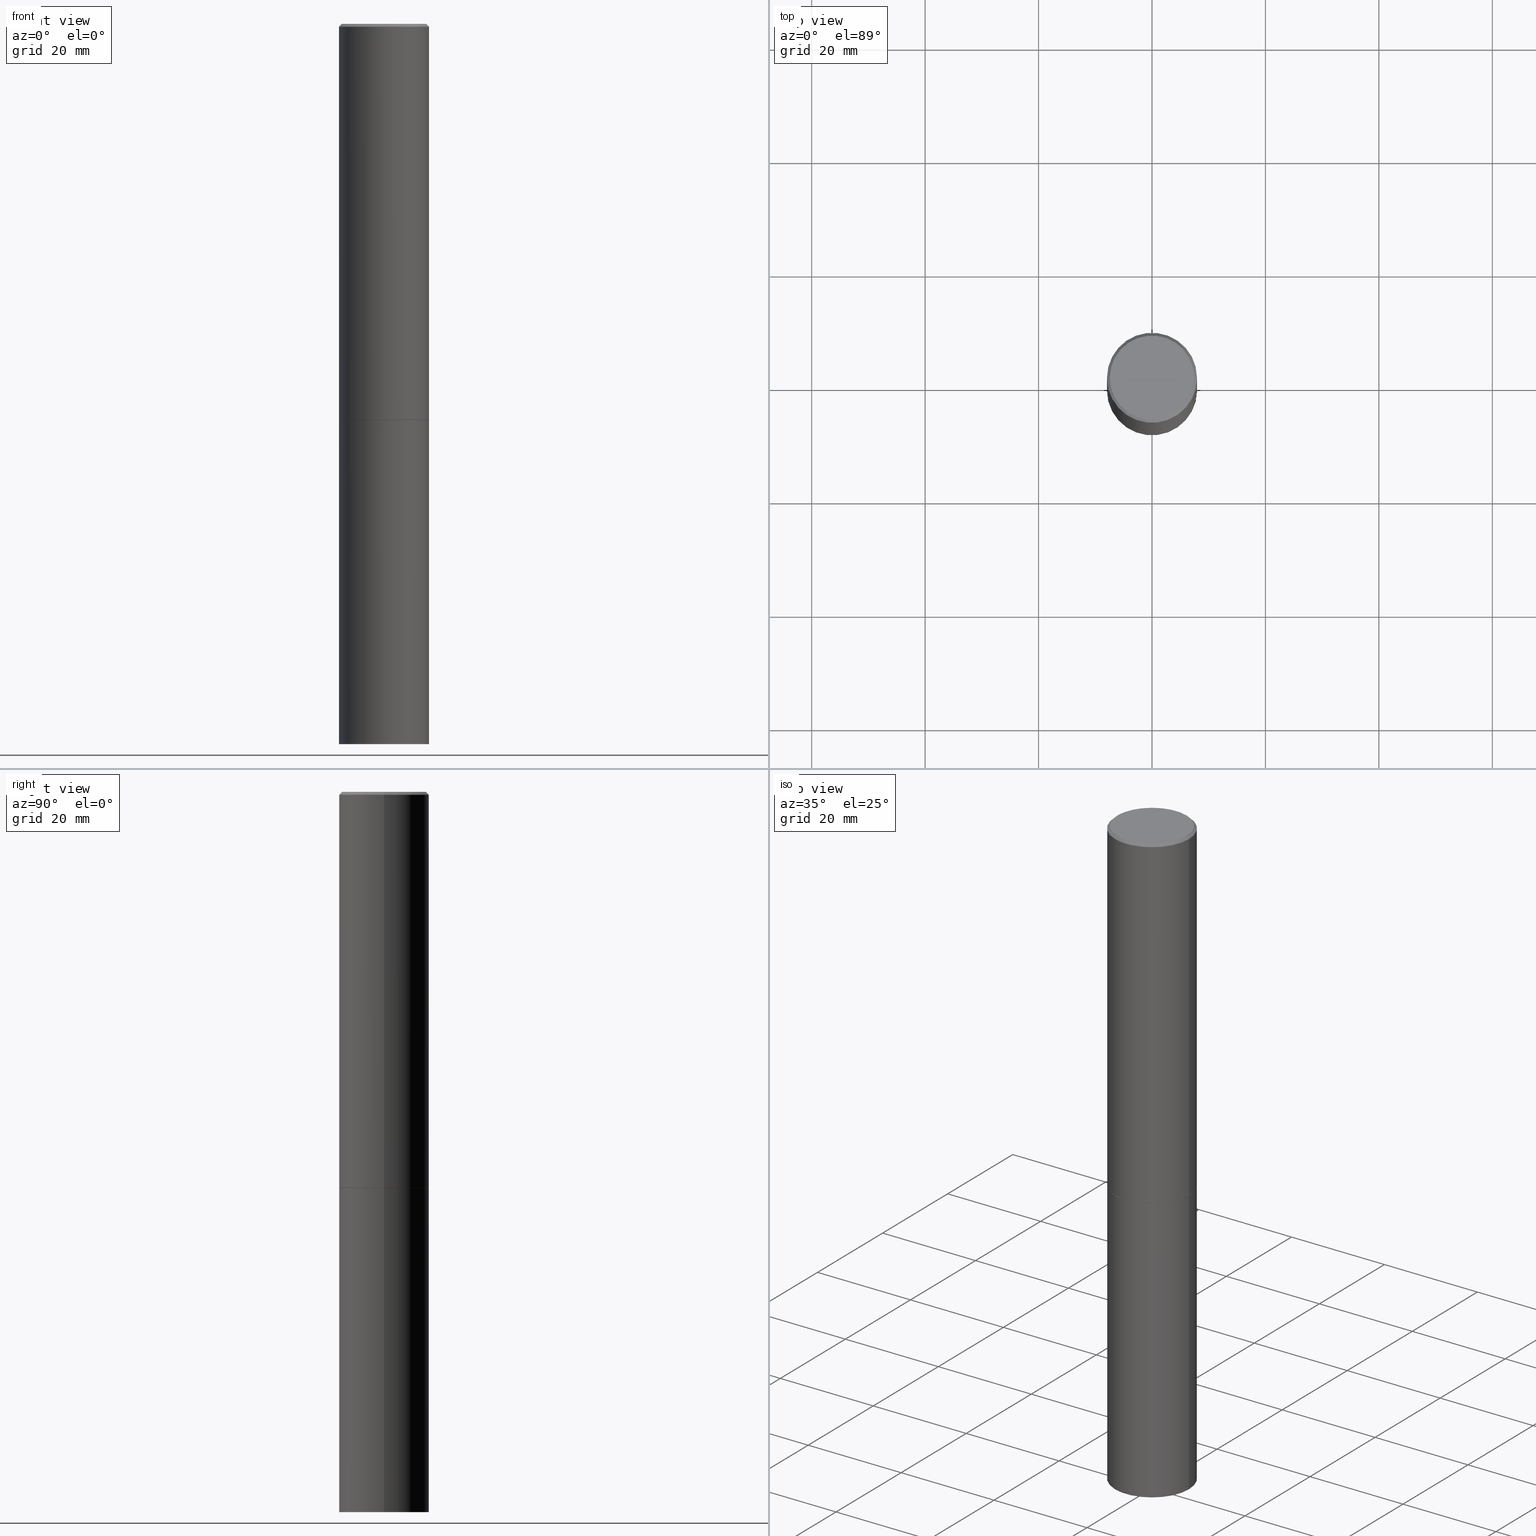
[diagram: canonical four-view strip — front | top / right | iso, engineering-drawing reading convention]
A machine part, canonical four-view strip (front | top / right | iso — engineering-drawing reading convention). The complete STEP part file that produces these views, byte-faithful:
ISO-10303-21;
HEADER;
FILE_DESCRIPTION (( 'STEP AP203' ),
    '1' );
FILE_NAME ('70484.STEP',
    '2024-02-29T03:09:03',
    ( '' ),
    ( '' ),
    'SwSTEP 2.0',
    'SolidWorks 2023',
    '' );
FILE_SCHEMA (( 'CONFIG_CONTROL_DESIGN' ));
ENDSEC;

DATA;
#1 = VERTEX_POINT ( 'NONE', #300 ) ;
#2 = VERTEX_POINT ( 'NONE', #189 ) ;
#3 = APPROVAL_DATE_TIME ( #259, #114 ) ;
#4 = ORIENTED_EDGE ( 'NONE', *, *, #316, .F. ) ;
#5 = VECTOR ( 'NONE', #177, 39.37007874015748143 ) ;
#6 = CARTESIAN_POINT ( 'NONE',  ( -0.3125000000000000000, -1.130904413876687600E-14, -2.750000000000000000 ) ) ;
#7 = AXIS2_PLACEMENT_3D ( 'NONE', #14, #66, #185 ) ;
#8 = ORIENTED_EDGE ( 'NONE', *, *, #110, .T. ) ;
#9 =( LENGTH_UNIT ( ) NAMED_UNIT ( * ) SI_UNIT ( $, .METRE. ) );
#10 = EDGE_CURVE ( 'NONE', #297, #33, #130, .T. ) ;
#11 = CARTESIAN_POINT ( 'NONE',  ( 0.000000000000000000, 0.000000000000000000, 0.000000000000000000 ) ) ;
#12 = VECTOR ( 'NONE', #45, 39.37007874015748143 ) ;
#13 = CC_DESIGN_APPROVAL ( #211, ( #181 ) ) ;
#14 = CARTESIAN_POINT ( 'NONE',  ( -1.043851414335219820E-46, 1.490343170380447200E-32, 4.268512490100411279E-18 ) ) ;
#15 = DIRECTION ( 'NONE',  ( -2.445468806185136597E-29, 3.491481338843145583E-15, 1.000000000000000000 ) ) ;
#16 = PERSON_AND_ORGANIZATION_ROLE ( 'classification_officer' ) ;
#17 = DIRECTION ( 'NONE',  ( 1.000000000000000000, -6.982962677686269077E-15, 0.000000000000000000 ) ) ;
#18 = PERSON_AND_ORGANIZATION_ROLE ( 'design_supplier' ) ;
#19 = DIRECTION ( 'NONE',  ( -2.445468806185136597E-29, 3.491481338843145583E-15, 1.000000000000000000 ) ) ;
#20 = AXIS2_PLACEMENT_3D ( 'NONE', #336, #191, #157 ) ;
#21 = AXIS2_PLACEMENT_3D ( 'NONE', #269, #180, #266 ) ;
#22 = CARTESIAN_POINT ( 'NONE',  ( 6.722593748202941159E-29, -9.598082200479808430E-15, -2.749000000000000110 ) ) ;
#23 = DIRECTION ( 'NONE',  ( 1.000000000000000000, -6.982962677686265922E-15, 0.000000000000000000 ) ) ;
#24 = VECTOR ( 'NONE', #278, 39.37007874015748143 ) ;
#25 = LINE ( 'NONE', #100, #227 ) ;
#26 = EDGE_CURVE ( 'NONE', #287, #174, #366, .T. ) ;
#27 = ORIENTED_EDGE ( 'NONE', *, *, #26, .F. ) ;
#28 = AXIS2_PLACEMENT_3D ( 'NONE', #22, #361, #105 ) ;
#29 = ORIENTED_EDGE ( 'NONE', *, *, #52, .F. ) ;
#30 = PERSON_AND_ORGANIZATION ( #161, #344 ) ;
#31 = EDGE_CURVE ( 'NONE', #297, #201, #311, .T. ) ;
#32 = ORIENTED_EDGE ( 'NONE', *, *, #345, .F. ) ;
#33 = VERTEX_POINT ( 'NONE', #216 ) ;
#34 = DIRECTION ( 'NONE',  ( -2.445468806185136597E-29, 3.491481338843145583E-15, 1.000000000000000000 ) ) ;
#35 = DIRECTION ( 'NONE',  ( 1.000000000000000000, -6.982962677686265133E-15, 4.876176775795935232E-29 ) ) ;
#36 = SECURITY_CLASSIFICATION ( '', '', #302 ) ;
#37 = CARTESIAN_POINT ( 'NONE',  ( 2.042516583223229779E-15, 0.2924999999999995937, -1.019124035366568423E-15 ) ) ;
#38 = DESIGN_CONTEXT ( 'detailed design', #230, 'design' ) ;
#39 = DIRECTION ( 'NONE',  ( -2.445468806185136597E-29, 3.491481338843145583E-15, 1.000000000000000000 ) ) ;
#40 = DIRECTION ( 'NONE',  ( -2.445468806185136597E-29, 3.491481338843145583E-15, 1.000000000000000000 ) ) ;
#41 = EDGE_CURVE ( 'NONE', #33, #174, #206, .T. ) ;
#42 = DIRECTION ( 'NONE',  ( -1.000000000000000000, 6.982962677686266711E-15, 0.000000000000000000 ) ) ;
#43 = PLANE ( 'NONE',  #285 ) ;
#44 = CARTESIAN_POINT ( 'NONE',  ( -0.3125000000000000000, -2.613509864378019233E-15, -2.749000000000000110 ) ) ;
#45 = DIRECTION ( 'NONE',  ( -0.7071067811865466846, 2.468850131082247989E-15, -0.7071067811865483499 ) ) ;
#46 = AXIS2_PLACEMENT_3D ( 'NONE', #84, #320, #265 ) ;
#47 = EDGE_CURVE ( 'NONE', #1, #257, #362, .T. ) ;
#48 = EDGE_LOOP ( 'NONE', ( #224, #307, #49, #27 ) ) ;
#49 = ORIENTED_EDGE ( 'NONE', *, *, #41, .T. ) ;
#50 = AXIS2_PLACEMENT_3D ( 'NONE', #57, #232, #35 ) ;
#51 = ORIENTED_EDGE ( 'NONE', *, *, #31, .T. ) ;
#52 = EDGE_CURVE ( 'NONE', #112, #201, #25, .T. ) ;
#53 = CALENDAR_DATE ( 2024, 28, 2 ) ;
#54 = ORIENTED_EDGE ( 'NONE', *, *, #365, .F. ) ;
#55 = ADVANCED_FACE ( 'NONE', ( #133 ), #254, .T. ) ;
#56 = APPROVAL_PERSON_ORGANIZATION ( #357, #142, #65 ) ;
#57 = CARTESIAN_POINT ( 'NONE',  ( 0.000000000000000000, 0.000000000000000000, 0.000000000000000000 ) ) ;
#58 = APPROVAL_STATUS ( 'not_yet_approved' ) ;
#59 =( CONVERSION_BASED_UNIT ( 'INCH', #235 ) LENGTH_UNIT ( ) NAMED_UNIT ( #74 ) );
#60 = CARTESIAN_POINT ( 'NONE',  ( -0.2924999999999995937, 2.077431396611661033E-15, 4.268512490086005323E-18 ) ) ;
#61 = AXIS2_PLACEMENT_3D ( 'NONE', #283, #166, #69 ) ;
#62 = MANIFOLD_SOLID_BREP ( 'Body-Move/Copy2[2]', #354 ) ;
#63 = ADVANCED_FACE ( 'NONE', ( #221 ), #43, .F. ) ;
#64 = CYLINDRICAL_SURFACE ( 'NONE', #294, 0.3125000000000000000 ) ;
#65 = APPROVAL_ROLE ( '' ) ;
#66 = DIRECTION ( 'NONE',  ( -2.445468806185136597E-29, 3.491481338843145583E-15, 1.000000000000000000 ) ) ;
#67 = CALENDAR_DATE ( 2024, 28, 2 ) ;
#68 = DIRECTION ( 'NONE',  ( 1.000000000000000000, -6.982962677686269077E-15, 0.000000000000000000 ) ) ;
#69 = DIRECTION ( 'NONE',  ( 1.000000000000000000, -6.982962677686266711E-15, 0.000000000000000000 ) ) ;
#70 = DIRECTION ( 'NONE',  ( 1.000000000000000000, -6.982962677686269077E-15, 0.000000000000000000 ) ) ;
#71 = ADVANCED_FACE ( 'NONE', ( #333 ), #255, .T. ) ;
#72 = CARTESIAN_POINT ( 'NONE',  ( 6.725039217009123399E-29, -9.601573681818648281E-15, -2.749999999999999556 ) ) ;
#73 = CARTESIAN_POINT ( 'NONE',  ( -0.3114999999999999991, -7.382934605577716173E-15, -2.749999999999999556 ) ) ;
#74 = DIMENSIONAL_EXPONENTS ( 1.000000000000000000, 0.000000000000000000, 0.000000000000000000, 0.000000000000000000, 0.000000000000000000, 0.000000000000000000, 0.000000000000000000 ) ;
#75 = CIRCLE ( 'NONE', #198, 0.3125000000000000000 ) ;
#76 = LOCAL_TIME ( 22, 9, 3.000000000000000000, #125 ) ;
#77 = ORIENTED_EDGE ( 'NONE', *, *, #110, .F. ) ;
#78 = APPLICATION_PROTOCOL_DEFINITION ( 'international standard', 'config_control_design', 1994, #148 ) ;
#79 = ORIENTED_EDGE ( 'NONE', *, *, #183, .F. ) ;
#80 = AXIS2_PLACEMENT_3D ( 'NONE', #246, #104, #303 ) ;
#81 = PERSON_AND_ORGANIZATION ( #161, #344 ) ;
#82 = VERTEX_POINT ( 'NONE', #6 ) ;
#83 = ORIENTED_EDGE ( 'NONE', *, *, #91, .F. ) ;
#84 = CARTESIAN_POINT ( 'NONE',  ( 0.000000000000000000, 0.000000000000000000, 0.000000000000000000 ) ) ;
#85 = ADVANCED_FACE ( 'NONE', ( #256 ), #234, .T. ) ;
#86 = CARTESIAN_POINT ( 'NONE',  ( 6.725039217009123399E-29, -9.601573681818648281E-15, -2.749999999999999556 ) ) ;
#87 = CONICAL_SURFACE ( 'NONE', #301, 0.3114999999999999991, 0.7853981633978239785 ) ;
#88 = ORIENTED_EDGE ( 'NONE', *, *, #308, .F. ) ;
#89 = PLANE ( 'NONE',  #335 ) ;
#90 = PERSON_AND_ORGANIZATION ( #161, #344 ) ;
#91 = EDGE_CURVE ( 'NONE', #201, #297, #324, .T. ) ;
#92 = CARTESIAN_POINT ( 'NONE',  ( 6.725039217009123399E-29, -9.601573681818648281E-15, -2.749999999999999556 ) ) ;
#93 = AXIS2_PLACEMENT_3D ( 'NONE', #260, #197, #108 ) ;
#94 = DIRECTION ( 'NONE',  ( 1.000000000000000000, -6.982962677686265922E-15, 0.000000000000000000 ) ) ;
#95 = DATE_AND_TIME ( #67, #340 ) ;
#96 = ORIENTED_EDGE ( 'NONE', *, *, #308, .T. ) ;
#97 = PRODUCT_RELATED_PRODUCT_CATEGORY ( 'detail', '', ( #239 ) ) ;
#98 = CALENDAR_DATE ( 2024, 28, 2 ) ;
#99 = CARTESIAN_POINT ( 'NONE',  ( 4.890937612370289799E-31, -6.982962677686315028E-17, -0.02000000000000006981 ) ) ;
#100 = CARTESIAN_POINT ( 'NONE',  ( -0.3114999999999999991, -7.388233059925936998E-15, -2.749999999999999556 ) ) ;
#101 = DIRECTION ( 'NONE',  ( 2.438088387897960049E-29, -3.491481338843145188E-15, -1.000000000000000000 ) ) ;
#102 = CONICAL_SURFACE ( 'NONE', #127, 0.3124999999999996114, 0.7853981633974471688 ) ;
#103 = AXIS2_PLACEMENT_3D ( 'NONE', #92, #39, #94 ) ;
#104 = DIRECTION ( 'NONE',  ( -2.445468806185136597E-29, 3.491481338843145583E-15, 1.000000000000000000 ) ) ;
#105 = DIRECTION ( 'NONE',  ( 1.000000000000000000, -6.982962677686269077E-15, 0.000000000000000000 ) ) ;
#106 = CARTESIAN_POINT ( 'NONE',  ( 2.182175836777080620E-15, 0.3124999999999825140, -5.000000000000000888 ) ) ;
#107 = CIRCLE ( 'NONE', #137, 0.3125000000000000000 ) ;
#108 = DIRECTION ( 'NONE',  ( -1.000000000000000000, 6.982962677686266711E-15, 0.000000000000000000 ) ) ;
#109 = ORIENTED_EDGE ( 'NONE', *, *, #31, .F. ) ;
#110 = EDGE_CURVE ( 'NONE', #82, #317, #120, .T. ) ;
#111 = VERTEX_POINT ( 'NONE', #158 ) ;
#112 = VERTEX_POINT ( 'NONE', #73 ) ;
#113 = AXIS2_PLACEMENT_3D ( 'NONE', #72, #159, #23 ) ;
#114 = APPROVAL ( #58, 'UNSPECIFIED' ) ;
#115 = APPROVAL_ROLE ( '' ) ;
#116 = ORIENTED_EDGE ( 'NONE', *, *, #241, .T. ) ;
#117 = CARTESIAN_POINT ( 'NONE',  ( 1.222734403092568523E-28, -1.745740669421572989E-14, -5.000000000000000000 ) ) ;
#118 = ORIENTED_EDGE ( 'NONE', *, *, #52, .T. ) ;
#119 = DIRECTION ( 'NONE',  ( -2.445468806185136877E-29, 3.491481338843145188E-15, 1.000000000000000000 ) ) ;
#120 = CIRCLE ( 'NONE', #80, 0.3125000000000000000 ) ;
#121 = APPROVAL_STATUS ( 'not_yet_approved' ) ;
#122 = CARTESIAN_POINT ( 'NONE',  ( 0.3125000000000000000, -2.182175836776958347E-15, 1.523805242436230075E-29 ) ) ;
#123 = CC_DESIGN_PERSON_AND_ORGANIZATION_ASSIGNMENT ( #273, #279, ( #181 ) ) ;
#124 = FACE_OUTER_BOUND ( 'NONE', #205, .T. ) ;
#125 = COORDINATED_UNIVERSAL_TIME_OFFSET ( 5, 0, .BEHIND. ) ;
#126 = DIRECTION ( 'NONE',  ( -1.000000000000000000, 6.982962677686265922E-15, -4.876176775795935793E-29 ) ) ;
#127 = AXIS2_PLACEMENT_3D ( 'NONE', #99, #128, #42 ) ;
#128 = DIRECTION ( 'NONE',  ( 2.445468806185136597E-29, -3.491481338843145583E-15, -1.000000000000000000 ) ) ;
#129 = PRODUCT_DEFINITION ( 'UNKNOWN', '', #181, #38 ) ;
#130 = LINE ( 'NONE', #337, #24 ) ;
#131 = ORIENTED_EDGE ( 'NONE', *, *, #10, .T. ) ;
#132 = CARTESIAN_POINT ( 'NONE',  ( 0.000000000000000000, 0.000000000000000000, 0.000000000000000000 ) ) ;
#133 = FACE_OUTER_BOUND ( 'NONE', #186, .T. ) ;
#134 = VECTOR ( 'NONE', #119, 39.37007874015748143 ) ;
#135 = LOCAL_TIME ( 22, 9, 3.000000000000000000, #143 ) ;
#136 = DIRECTION ( 'NONE',  ( -0.7071067811868130271, 7.493145998871311837E-15, 0.7071067811862817853 ) ) ;
#137 = AXIS2_PLACEMENT_3D ( 'NONE', #117, #34, #17 ) ;
#138 = ORIENTED_EDGE ( 'NONE', *, *, #316, .T. ) ;
#139 = EDGE_LOOP ( 'NONE', ( #51, #228, #231, #168 ) ) ;
#140 = CALENDAR_DATE ( 2024, 28, 2 ) ;
#141 = ORIENTED_EDGE ( 'NONE', *, *, #248, .F. ) ;
#142 = APPROVAL ( #121, 'UNSPECIFIED' ) ;
#143 = COORDINATED_UNIVERSAL_TIME_OFFSET ( 5, 0, .BEHIND. ) ;
#144 = ORIENTED_EDGE ( 'NONE', *, *, #183, .T. ) ;
#145 = DATE_TIME_ROLE ( 'creation_date' ) ;
#146 = ORIENTED_EDGE ( 'NONE', *, *, #341, .T. ) ;
#147 = LINE ( 'NONE', #212, #282 ) ;
#148 = APPLICATION_CONTEXT ( 'configuration controlled 3d designs of mechanical parts and assemblies' ) ;
#149 = EDGE_CURVE ( 'NONE', #111, #33, #332, .T. ) ;
#150 = FACE_OUTER_BOUND ( 'NONE', #171, .T. ) ;
#151 = CC_DESIGN_APPROVAL ( #114, ( #129 ) ) ;
#152 = COORDINATED_UNIVERSAL_TIME_OFFSET ( 5, 0, .BEHIND. ) ;
#153 = PLANE ( 'NONE',  #275 ) ;
#154 = DATE_AND_TIME ( #184, #76 ) ;
#155 = CARTESIAN_POINT ( 'NONE',  ( 2.182175836777025400E-15, 0.3124999999999903966, -2.750000000000000888 ) ) ;
#156 = CLOSED_SHELL ( 'NONE', ( #322, #55, #305, #202 ) ) ;
#157 = DIRECTION ( 'NONE',  ( 1.000000000000000000, -6.982962677686266711E-15, 4.876067333457696203E-29 ) ) ;
#158 = CARTESIAN_POINT ( 'NONE',  ( 0.2924999999999995937, -2.110215457714316776E-15, 4.268512490114932791E-18 ) ) ;
#159 = DIRECTION ( 'NONE',  ( -2.445468806185136597E-29, 3.491481338843145583E-15, 1.000000000000000000 ) ) ;
#160 = ADVANCED_FACE ( 'NONE', ( #188 ), #249, .T. ) ;
#161 = PERSON ( 'UNSPECIFIED', 'UNSPECIFIED', 'UNSPECIFIED', ('UNSPECIFIED'), ('UNSPECIFIED'), ('UNSPECIFIED') ) ;
#162 = FACE_OUTER_BOUND ( 'NONE', #163, .T. ) ;
#163 = EDGE_LOOP ( 'NONE', ( #194, #343, #116, #77 ) ) ;
#164 = AXIS2_PLACEMENT_3D ( 'NONE', #309, #222, #70 ) ;
#165 = AXIS2_PLACEMENT_3D ( 'NONE', #353, #242, #270 ) ;
#166 = DIRECTION ( 'NONE',  ( -2.445468806185136597E-29, 3.491481338843145583E-15, 1.000000000000000000 ) ) ;
#167 = CC_DESIGN_PERSON_AND_ORGANIZATION_ASSIGNMENT ( #245, #18, ( #181 ) ) ;
#168 = ORIENTED_EDGE ( 'NONE', *, *, #10, .F. ) ;
#169 = EDGE_LOOP ( 'NONE', ( #199, #88 ) ) ;
#170 = VECTOR ( 'NONE', #214, 39.37007874015748854 ) ;
#171 = EDGE_LOOP ( 'NONE', ( #226, #315, #79, #258 ) ) ;
#172 = ORIENTED_EDGE ( 'NONE', *, *, #47, .F. ) ;
#173 = DATE_AND_TIME ( #53, #135 ) ;
#174 = VERTEX_POINT ( 'NONE', #252 ) ;
#175 = CIRCLE ( 'NONE', #20, 0.2924999999999995937 ) ;
#176 = CIRCLE ( 'NONE', #165, 0.3114999999999999991 ) ;
#177 = DIRECTION ( 'NONE',  ( -2.445468806185136877E-29, 3.491481338843145188E-15, 1.000000000000000000 ) ) ;
#178 = CC_DESIGN_PERSON_AND_ORGANIZATION_ASSIGNMENT ( #243, #16, ( #36 ) ) ;
#179 =( NAMED_UNIT ( * ) PLANE_ANGLE_UNIT ( ) SI_UNIT ( $, .RADIAN. ) );
#180 = DIRECTION ( 'NONE',  ( -2.445468806185136597E-29, 3.491481338843145583E-15, 1.000000000000000000 ) ) ;
#181 = PRODUCT_DEFINITION_FORMATION_WITH_SPECIFIED_SOURCE ( 'ANY', '', #239, .NOT_KNOWN. ) ;
#182 = DIRECTION ( 'NONE',  ( 1.000000000000000000, -6.982962677686266711E-15, 4.876176775795936353E-29 ) ) ;
#183 = EDGE_CURVE ( 'NONE', #317, #82, #75, .T. ) ;
#184 = CALENDAR_DATE ( 2024, 28, 2 ) ;
#185 = DIRECTION ( 'NONE',  ( 1.000000000000000000, -6.982962677686266711E-15, 4.876067333457696203E-29 ) ) ;
#186 = EDGE_LOOP ( 'NONE', ( #172, #261 ) ) ;
#187 = APPROVAL_ROLE ( '' ) ;
#188 = FACE_OUTER_BOUND ( 'NONE', #313, .T. ) ;
#189 = CARTESIAN_POINT ( 'NONE',  ( 0.3114999999999999991, -1.177676655591792061E-14, -2.749999999999999556 ) ) ;
#190 = ADVANCED_FACE ( 'NONE', ( #364 ), #102, .T. ) ;
#191 = DIRECTION ( 'NONE',  ( -2.445468806185136597E-29, 3.491481338843145583E-15, 1.000000000000000000 ) ) ;
#192 = AXIS2_PLACEMENT_3D ( 'NONE', #106, #101, #223 ) ;
#193 = EDGE_CURVE ( 'NONE', #111, #287, #175, .T. ) ;
#194 = ORIENTED_EDGE ( 'NONE', *, *, #288, .F. ) ;
#195 = MANIFOLD_SOLID_BREP ( 'Body-Move/Copy2[1]', #156 ) ;
#196 = ORIENTED_EDGE ( 'NONE', *, *, #26, .T. ) ;
#197 = DIRECTION ( 'NONE',  ( 2.445468806185136597E-29, -3.491481338843145583E-15, -1.000000000000000000 ) ) ;
#198 = AXIS2_PLACEMENT_3D ( 'NONE', #358, #19, #68 ) ;
#199 = ORIENTED_EDGE ( 'NONE', *, *, #341, .F. ) ;
#200 = CC_DESIGN_APPROVAL ( #142, ( #36 ) ) ;
#201 = VERTEX_POINT ( 'NONE', #44 ) ;
#202 = ADVANCED_FACE ( 'NONE', ( #162 ), #244, .T. ) ;
#203 = MECHANICAL_CONTEXT ( 'NONE', #148, 'mechanical' ) ;
#204 = EDGE_LOOP ( 'NONE', ( #29, #96, #346, #83 ) ) ;
#205 = EDGE_LOOP ( 'NONE', ( #348, #264 ) ) ;
#206 = CIRCLE ( 'NONE', #61, 0.3124999999999996114 ) ;
#207 = CC_DESIGN_SECURITY_CLASSIFICATION ( #36, ( #181 ) ) ;
#208 = CARTESIAN_POINT ( 'NONE',  ( 0.3114999999999999991, -1.177676655591792061E-14, -2.749999999999999556 ) ) ;
#209 = FACE_OUTER_BOUND ( 'NONE', #262, .T. ) ;
#210 = LINE ( 'NONE', #272, #134 ) ;
#211 = APPROVAL ( #296, 'UNSPECIFIED' ) ;
#212 = CARTESIAN_POINT ( 'NONE',  ( -0.3125000000000000000, 2.220446049250313081E-15, -1.537167215704658232E-29 ) ) ;
#213 = APPROVAL_PERSON_ORGANIZATION ( #30, #114, #115 ) ;
#214 = DIRECTION ( 'NONE',  ( 0.7071067811868130271, -2.468850131085038979E-15, 0.7071067811862817853 ) ) ;
#215 = DIRECTION ( 'NONE',  ( 0.7071067811865466846, -7.319954787623252890E-15, -0.7071067811865483499 ) ) ;
#216 = CARTESIAN_POINT ( 'NONE',  ( 0.3124999999999996114, -2.213735251080464150E-15, -0.02000000000000006981 ) ) ;
#217 = SHAPE_DEFINITION_REPRESENTATION ( #347, #229 ) ;
#218 = DIRECTION ( 'NONE',  ( 1.000000000000000000, -6.982962677686266711E-15, 4.876176775795936353E-29 ) ) ;
#219 = DIRECTION ( 'NONE',  ( 1.000000000000000000, -6.982962677686265922E-15, 4.876176775795935793E-29 ) ) ;
#220 = CC_DESIGN_DATE_AND_TIME_ASSIGNMENT ( #276, #236, ( #36 ) ) ;
#221 = FACE_OUTER_BOUND ( 'NONE', #169, .T. ) ;
#222 = DIRECTION ( 'NONE',  ( -2.445468806185136597E-29, 3.491481338843145583E-15, 1.000000000000000000 ) ) ;
#223 = DIRECTION ( 'NONE',  ( -1.000000000000000000, 6.982962677686265922E-15, -4.876176775795935793E-29 ) ) ;
#224 = ORIENTED_EDGE ( 'NONE', *, *, #193, .F. ) ;
#225 = APPLICATION_PROTOCOL_DEFINITION ( 'international standard', 'config_control_design', 1994, #230 ) ;
#226 = ORIENTED_EDGE ( 'NONE', *, *, #47, .T. ) ;
#227 = VECTOR ( 'NONE', #136, 39.37007874015748854 ) ;
#228 = ORIENTED_EDGE ( 'NONE', *, *, #248, .T. ) ;
#229 = ADVANCED_BREP_SHAPE_REPRESENTATION ( '70484', ( #195, #62, #46 ), #312 ) ;
#230 = APPLICATION_CONTEXT ( 'configuration controlled 3d designs of mechanical parts and assemblies' ) ;
#231 = ORIENTED_EDGE ( 'NONE', *, *, #41, .F. ) ;
#232 = DIRECTION ( 'NONE',  ( -2.445468806185136597E-29, 3.491481338843145583E-15, 1.000000000000000000 ) ) ;
#233 = UNCERTAINTY_MEASURE_WITH_UNIT (LENGTH_MEASURE( 1.000000000000000082E-05 ), #59, 'distance_accuracy_value', 'NONE');
#234 = CONICAL_SURFACE ( 'NONE', #93, 0.3124999999999996114, 0.7853981633974471688 ) ;
#235 = LENGTH_MEASURE_WITH_UNIT ( LENGTH_MEASURE( 0.02539999999999999897 ), #9 );
#236 = DATE_TIME_ROLE ( 'classification_date' ) ;
#237 = DIRECTION ( 'NONE',  ( -2.445468806185136877E-29, 3.491481338843145188E-15, 1.000000000000000000 ) ) ;
#238 = ORIENTED_EDGE ( 'NONE', *, *, #149, .F. ) ;
#239 = PRODUCT ( '70484', '70484', '', ( #203 ) ) ;
#240 = DIRECTION ( 'NONE',  ( -1.000000000000000000, 6.982962677686265922E-15, -4.876176775795935793E-29 ) ) ;
#241 = EDGE_CURVE ( 'NONE', #1, #317, #299, .T. ) ;
#242 = DIRECTION ( 'NONE',  ( -2.445468806185136597E-29, 3.491481338843145583E-15, 1.000000000000000000 ) ) ;
#243 = PERSON_AND_ORGANIZATION ( #161, #344 ) ;
#244 = CYLINDRICAL_SURFACE ( 'NONE', #274, 0.3125000000000000000 ) ;
#245 = PERSON_AND_ORGANIZATION ( #161, #344 ) ;
#246 = CARTESIAN_POINT ( 'NONE',  ( 6.725039217009124520E-29, -9.601573681818649859E-15, -2.750000000000000000 ) ) ;
#247 = CARTESIAN_POINT ( 'NONE',  ( 1.222734403092568523E-28, -1.745740669421572989E-14, -5.000000000000000000 ) ) ;
#248 = EDGE_CURVE ( 'NONE', #201, #174, #210, .T. ) ;
#249 = CYLINDRICAL_SURFACE ( 'NONE', #306, 0.3124999999999998335 ) ;
#250 = DIRECTION ( 'NONE',  ( 1.000000000000000000, -6.982962677686269077E-15, 0.000000000000000000 ) ) ;
#251 =( NAMED_UNIT ( * ) SI_UNIT ( $, .STERADIAN. ) SOLID_ANGLE_UNIT ( ) );
#252 = CARTESIAN_POINT ( 'NONE',  ( -0.3124999999999996114, 2.112346210000092288E-15, -0.02000000000000006981 ) ) ;
#253 = ADVANCED_FACE ( 'NONE', ( #321 ), #87, .T. ) ;
#254 = PLANE ( 'NONE',  #192 ) ;
#255 = CONICAL_SURFACE ( 'NONE', #113, 0.3114999999999999991, 0.7853981633978239785 ) ;
#256 = FACE_OUTER_BOUND ( 'NONE', #310, .T. ) ;
#257 = VERTEX_POINT ( 'NONE', #290 ) ;
#258 = ORIENTED_EDGE ( 'NONE', *, *, #241, .F. ) ;
#259 = DATE_AND_TIME ( #140, #263 ) ;
#260 = CARTESIAN_POINT ( 'NONE',  ( 4.890937612370289799E-31, -6.982962677686315028E-17, -0.02000000000000006981 ) ) ;
#261 = ORIENTED_EDGE ( 'NONE', *, *, #271, .F. ) ;
#262 = EDGE_LOOP ( 'NONE', ( #144, #8 ) ) ;
#263 = LOCAL_TIME ( 22, 9, 3.000000000000000000, #342 ) ;
#264 = ORIENTED_EDGE ( 'NONE', *, *, #193, .T. ) ;
#265 = DIRECTION ( 'NONE',  ( 1.000000000000000000, 0.000000000000000000, 0.000000000000000000 ) ) ;
#266 = DIRECTION ( 'NONE',  ( 1.000000000000000000, -6.982962677686266711E-15, 0.000000000000000000 ) ) ;
#267 = PERSON_AND_ORGANIZATION_ROLE ( 'design_owner' ) ;
#268 = CIRCLE ( 'NONE', #21, 0.3124999999999996114 ) ;
#269 = CARTESIAN_POINT ( 'NONE',  ( 4.890937612370289799E-31, -6.982962677686315028E-17, -0.02000000000000006981 ) ) ;
#270 = DIRECTION ( 'NONE',  ( 1.000000000000000000, -6.982962677686265922E-15, 0.000000000000000000 ) ) ;
#271 = EDGE_CURVE ( 'NONE', #257, #1, #107, .T. ) ;
#272 = CARTESIAN_POINT ( 'NONE',  ( -0.3124999999999998335, 2.220446049250311898E-15, -1.537167215704657111E-29 ) ) ;
#273 = PERSON_AND_ORGANIZATION ( #161, #344 ) ;
#274 = AXIS2_PLACEMENT_3D ( 'NONE', #356, #330, #218 ) ;
#275 = AXIS2_PLACEMENT_3D ( 'NONE', #37, #328, #240 ) ;
#276 = DATE_AND_TIME ( #98, #363 ) ;
#277 = DIRECTION ( 'NONE',  ( -2.445468806185136597E-29, 3.491481338843145583E-15, 1.000000000000000000 ) ) ;
#278 = DIRECTION ( 'NONE',  ( -2.445468806185136877E-29, 3.491481338843145188E-15, 1.000000000000000000 ) ) ;
#279 = PERSON_AND_ORGANIZATION_ROLE ( 'creator' ) ;
#280 = CARTESIAN_POINT ( 'NONE',  ( 0.3124999999999996114, -2.213735251080464150E-15, -0.02000000000000006981 ) ) ;
#281 = CC_DESIGN_PERSON_AND_ORGANIZATION_ASSIGNMENT ( #81, #314, ( #129 ) ) ;
#282 = VECTOR ( 'NONE', #237, 39.37007874015748143 ) ;
#283 = CARTESIAN_POINT ( 'NONE',  ( 4.890937612370289799E-31, -6.982962677686315028E-17, -0.02000000000000006981 ) ) ;
#284 = DIRECTION ( 'NONE',  ( -2.438088387897960049E-29, 3.491481338843145188E-15, 1.000000000000000000 ) ) ;
#285 = AXIS2_PLACEMENT_3D ( 'NONE', #339, #284, #219 ) ;
#286 = APPROVAL_PERSON_ORGANIZATION ( #90, #211, #187 ) ;
#287 = VERTEX_POINT ( 'NONE', #60 ) ;
#288 = EDGE_CURVE ( 'NONE', #257, #82, #147, .T. ) ;
#289 = ORIENTED_EDGE ( 'NONE', *, *, #91, .T. ) ;
#290 = CARTESIAN_POINT ( 'NONE',  ( -0.3125000000000000000, -1.130904413876687600E-14, -5.000000000000000000 ) ) ;
#291 = CARTESIAN_POINT ( 'NONE',  ( 0.3125000000000000000, -1.178025803725676678E-14, -2.749000000000000110 ) ) ;
#292 = APPROVAL_DATE_TIME ( #154, #142 ) ;
#293 = ADVANCED_FACE ( 'NONE', ( #352 ), #298, .T. ) ;
#294 = AXIS2_PLACEMENT_3D ( 'NONE', #11, #40, #182 ) ;
#295 = CARTESIAN_POINT ( 'NONE',  ( 0.3125000000000000000, -1.178374951859560978E-14, -2.750000000000000000 ) ) ;
#296 = APPROVAL_STATUS ( 'not_yet_approved' ) ;
#297 = VERTEX_POINT ( 'NONE', #291 ) ;
#298 = CYLINDRICAL_SURFACE ( 'NONE', #50, 0.3124999999999998335 ) ;
#299 = LINE ( 'NONE', #122, #5 ) ;
#300 = CARTESIAN_POINT ( 'NONE',  ( 0.3125000000000000000, -1.963958253099268981E-14, -5.000000000000000000 ) ) ;
#301 = AXIS2_PLACEMENT_3D ( 'NONE', #86, #15, #323 ) ;
#302 = SECURITY_CLASSIFICATION_LEVEL ( 'unclassified' ) ;
#303 = DIRECTION ( 'NONE',  ( 1.000000000000000000, -6.982962677686269077E-15, 0.000000000000000000 ) ) ;
#304 = CARTESIAN_POINT ( 'NONE',  ( -0.3124999999999996114, 2.112346210000092288E-15, -0.02000000000000006981 ) ) ;
#305 = ADVANCED_FACE ( 'NONE', ( #209 ), #89, .F. ) ;
#306 = AXIS2_PLACEMENT_3D ( 'NONE', #132, #277, #360 ) ;
#307 = ORIENTED_EDGE ( 'NONE', *, *, #149, .T. ) ;
#308 = EDGE_CURVE ( 'NONE', #112, #2, #176, .T. ) ;
#309 = CARTESIAN_POINT ( 'NONE',  ( 6.722593748202941159E-29, -9.598082200479808430E-15, -2.749000000000000110 ) ) ;
#310 = EDGE_LOOP ( 'NONE', ( #238, #54, #196, #138 ) ) ;
#311 = CIRCLE ( 'NONE', #28, 0.3125000000000000000 ) ;
#312 =( GEOMETRIC_REPRESENTATION_CONTEXT ( 3 ) GLOBAL_UNCERTAINTY_ASSIGNED_CONTEXT ( ( #233 ) ) GLOBAL_UNIT_ASSIGNED_CONTEXT ( ( #59, #179, #251 ) ) REPRESENTATION_CONTEXT ( 'NONE', 'WORKASPACE' ) );
#313 = EDGE_LOOP ( 'NONE', ( #141, #289, #131, #4 ) ) ;
#314 = PERSON_AND_ORGANIZATION_ROLE ( 'creator' ) ;
#315 = ORIENTED_EDGE ( 'NONE', *, *, #288, .T. ) ;
#316 = EDGE_CURVE ( 'NONE', #174, #33, #268, .T. ) ;
#317 = VERTEX_POINT ( 'NONE', #295 ) ;
#318 = AXIS2_PLACEMENT_3D ( 'NONE', #247, #359, #250 ) ;
#319 = EDGE_LOOP ( 'NONE', ( #146, #118, #109, #32 ) ) ;
#320 = DIRECTION ( 'NONE',  ( 0.000000000000000000, 0.000000000000000000, 1.000000000000000000 ) ) ;
#321 = FACE_OUTER_BOUND ( 'NONE', #319, .T. ) ;
#322 = ADVANCED_FACE ( 'NONE', ( #150 ), #64, .T. ) ;
#323 = DIRECTION ( 'NONE',  ( 1.000000000000000000, -6.982962677686265922E-15, 0.000000000000000000 ) ) ;
#324 = CIRCLE ( 'NONE', #164, 0.3125000000000000000 ) ;
#325 = CIRCLE ( 'NONE', #103, 0.3114999999999999991 ) ;
#326 = DIRECTION ( 'NONE',  ( 2.438088387897960049E-29, -3.491481338843145188E-15, -1.000000000000000000 ) ) ;
#327 = COORDINATED_UNIVERSAL_TIME_OFFSET ( 5, 0, .BEHIND. ) ;
#328 = DIRECTION ( 'NONE',  ( 2.438088387897960049E-29, -3.491481338843145188E-15, -1.000000000000000000 ) ) ;
#329 = CC_DESIGN_PERSON_AND_ORGANIZATION_ASSIGNMENT ( #349, #267, ( #239 ) ) ;
#330 = DIRECTION ( 'NONE',  ( -2.445468806185136597E-29, 3.491481338843145583E-15, 1.000000000000000000 ) ) ;
#331 = APPROVAL_DATE_TIME ( #95, #211 ) ;
#332 = LINE ( 'NONE', #280, #334 ) ;
#333 = FACE_OUTER_BOUND ( 'NONE', #204, .T. ) ;
#334 = VECTOR ( 'NONE', #215, 39.37007874015748143 ) ;
#335 = AXIS2_PLACEMENT_3D ( 'NONE', #155, #326, #126 ) ;
#336 = CARTESIAN_POINT ( 'NONE',  ( -1.043851414335219820E-46, 1.490343170380447200E-32, 4.268512490100411279E-18 ) ) ;
#337 = CARTESIAN_POINT ( 'NONE',  ( 0.3124999999999998335, -2.182175836776956769E-15, 1.523805242436228954E-29 ) ) ;
#338 = ADVANCED_FACE ( 'NONE', ( #124 ), #153, .F. ) ;
#339 = CARTESIAN_POINT ( 'NONE',  ( 6.725039217009124520E-29, -9.601573681818649859E-15, -2.750000000000000000 ) ) ;
#340 = LOCAL_TIME ( 22, 9, 3.000000000000000000, #152 ) ;
#341 = EDGE_CURVE ( 'NONE', #2, #112, #325, .T. ) ;
#342 = COORDINATED_UNIVERSAL_TIME_OFFSET ( 5, 0, .BEHIND. ) ;
#343 = ORIENTED_EDGE ( 'NONE', *, *, #271, .T. ) ;
#344 = ORGANIZATION ( 'UNSPECIFIED', 'UNSPECIFIED', '' ) ;
#345 = EDGE_CURVE ( 'NONE', #2, #297, #355, .T. ) ;
#346 = ORIENTED_EDGE ( 'NONE', *, *, #345, .T. ) ;
#347 = PRODUCT_DEFINITION_SHAPE ( 'NONE', 'NONE',  #129 ) ;
#348 = ORIENTED_EDGE ( 'NONE', *, *, #365, .T. ) ;
#349 = PERSON_AND_ORGANIZATION ( #161, #344 ) ;
#350 = CIRCLE ( 'NONE', #7, 0.2924999999999995937 ) ;
#351 = CC_DESIGN_DATE_AND_TIME_ASSIGNMENT ( #173, #145, ( #129 ) ) ;
#352 = FACE_OUTER_BOUND ( 'NONE', #139, .T. ) ;
#353 = CARTESIAN_POINT ( 'NONE',  ( 6.725039217009123399E-29, -9.601573681818648281E-15, -2.749999999999999556 ) ) ;
#354 = CLOSED_SHELL ( 'NONE', ( #253, #293, #190, #85, #160, #71, #63, #338 ) ) ;
#355 = LINE ( 'NONE', #208, #170 ) ;
#356 = CARTESIAN_POINT ( 'NONE',  ( 0.000000000000000000, 0.000000000000000000, 0.000000000000000000 ) ) ;
#357 = PERSON_AND_ORGANIZATION ( #161, #344 ) ;
#358 = CARTESIAN_POINT ( 'NONE',  ( 6.725039217009124520E-29, -9.601573681818649859E-15, -2.750000000000000000 ) ) ;
#359 = DIRECTION ( 'NONE',  ( -2.445468806185136597E-29, 3.491481338843145583E-15, 1.000000000000000000 ) ) ;
#360 = DIRECTION ( 'NONE',  ( 1.000000000000000000, -6.982962677686265133E-15, 4.876176775795935232E-29 ) ) ;
#361 = DIRECTION ( 'NONE',  ( -2.445468806185136597E-29, 3.491481338843145583E-15, 1.000000000000000000 ) ) ;
#362 = CIRCLE ( 'NONE', #318, 0.3125000000000000000 ) ;
#363 = LOCAL_TIME ( 22, 9, 3.000000000000000000, #327 ) ;
#364 = FACE_OUTER_BOUND ( 'NONE', #48, .T. ) ;
#365 = EDGE_CURVE ( 'NONE', #287, #111, #350, .T. ) ;
#366 = LINE ( 'NONE', #304, #12 ) ;
ENDSEC;
END-ISO-10303-21;
